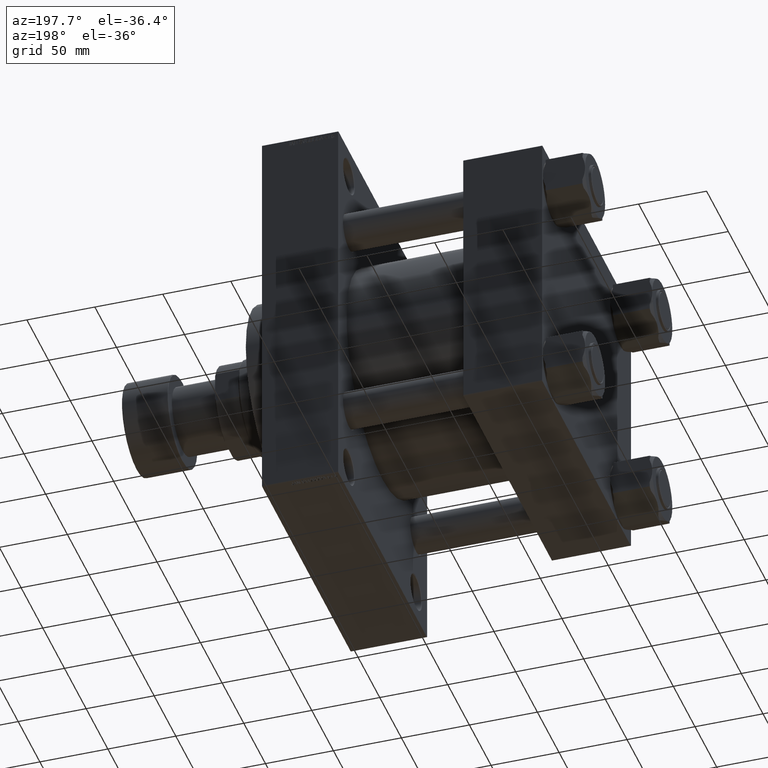
[diagram: clean part render]
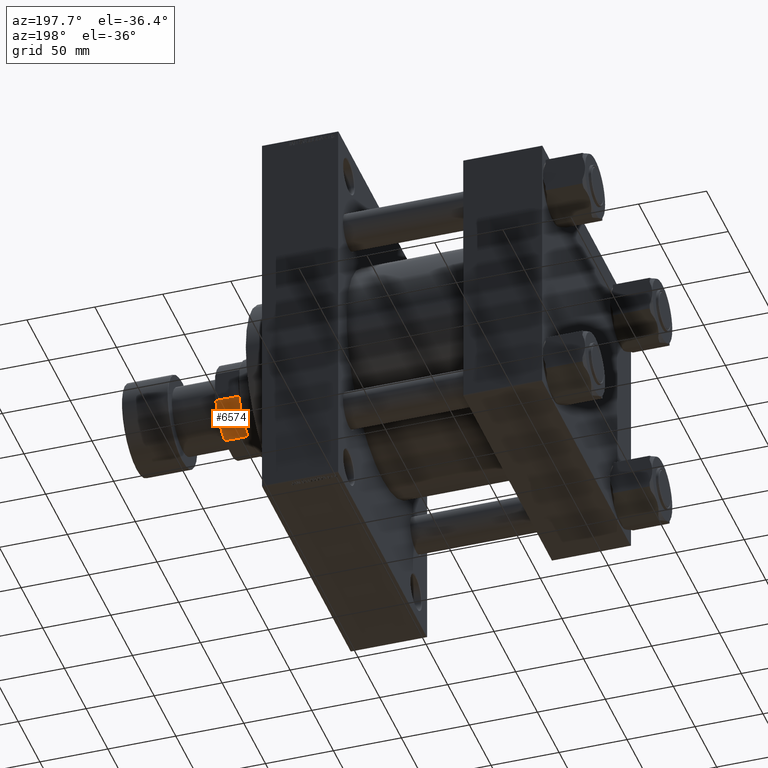
[diagram: same view with one face highlighted and labeled with its STEP entity id]
A machine part, auxiliary view. The second image highlights one B-rep face of the part: STEP entity #6574.
In plain terms, the highlighted cylindrical surface (partial cylindrical patch) has radius 34 mm, axis along (1, 0, 0).
Its self-contained STEP definition (entity closure, byte-faithful):
#779 = EDGE_CURVE ( 'NONE', #19226, #33202, #33602, .T. ) ;
#1121 = ORIENTED_EDGE ( 'NONE', *, *, #5552, .T. ) ;
#1408 = CARTESIAN_POINT ( 'NONE',  ( -32.00000000000000000, 11.48912529307606256, 204.4999999999997442 ) ) ;
#4848 = CARTESIAN_POINT ( 'NONE',  ( -11.48912529307602171, 32.00000000000001421, 187.5000000000000853 ) ) ;
#4854 = EDGE_LOOP ( 'NONE', ( #1121, #17666, #9293, #24168 ) ) ;
#5058 = CYLINDRICAL_SURFACE ( 'NONE', #31719, 34.00000000000000000 ) ;
#5552 = EDGE_CURVE ( 'NONE', #9467, #39588, #15814, .T. ) ;
#6574 = ADVANCED_FACE ( 'NONE', ( #44969 ), #5058, .T. ) ;
#9293 = ORIENTED_EDGE ( 'NONE', *, *, #779, .F. ) ;
#9467 = VERTEX_POINT ( 'NONE', #28546 ) ;
#12595 = DIRECTION ( 'NONE',  ( 1.000000000000000000, 0.000000000000000000, 0.000000000000000000 ) ) ;
#15242 = DIRECTION ( 'NONE',  ( -1.000000000000000000, 0.000000000000000000, 0.000000000000000000 ) ) ;
#15814 = LINE ( 'NONE', #27260, #18458 ) ;
#16245 = CARTESIAN_POINT ( 'NONE',  ( 0.000000000000000000, 0.000000000000000000, -0.001000000000001000089 ) ) ;
#17666 = ORIENTED_EDGE ( 'NONE', *, *, #24781, .T. ) ;
#18458 = VECTOR ( 'NONE', #31150, 1000.000000000000000 ) ;
#19226 = VERTEX_POINT ( 'NONE', #4848 ) ;
#21613 = DIRECTION ( 'NONE',  ( -0.000000000000000000, -0.000000000000000000, 1.000000000000000000 ) ) ;
#24168 = ORIENTED_EDGE ( 'NONE', *, *, #40527, .T. ) ;
#24781 = EDGE_CURVE ( 'NONE', #39588, #33202, #44155, .T. ) ;
#25108 = DIRECTION ( 'NONE',  ( -0.000000000000000000, -0.000000000000000000, 1.000000000000000000 ) ) ;
#25775 = DIRECTION ( 'NONE',  ( -0.000000000000000000, -0.000000000000000000, -1.000000000000000000 ) ) ;
#26482 = DIRECTION ( 'NONE',  ( 1.000000000000000000, 0.000000000000000000, 0.000000000000000000 ) ) ;
#27260 = CARTESIAN_POINT ( 'NONE',  ( -32.00000000000000000, 11.48912529307606256, -0.001000000000001000089 ) ) ;
#27559 = CIRCLE ( 'NONE', #47015, 34.00000000000000000 ) ;
#27837 = AXIS2_PLACEMENT_3D ( 'NONE', #32836, #25775, #26482 ) ;
#28417 = VECTOR ( 'NONE', #25108, 1000.000000000000000 ) ;
#28546 = CARTESIAN_POINT ( 'NONE',  ( -32.00000000000000000, 11.48912529307606079, 187.5000000000000853 ) ) ;
#31150 = DIRECTION ( 'NONE',  ( -0.000000000000000000, -0.000000000000000000, 1.000000000000000000 ) ) ;
#31719 = AXIS2_PLACEMENT_3D ( 'NONE', #16245, #45934, #12595 ) ;
#32836 = CARTESIAN_POINT ( 'NONE',  ( 0.000000000000000000, 0.000000000000000000, 204.4999999999998010 ) ) ;
#33202 = VERTEX_POINT ( 'NONE', #40704 ) ;
#33602 = LINE ( 'NONE', #43590, #28417 ) ;
#39588 = VERTEX_POINT ( 'NONE', #1408 ) ;
#40527 = EDGE_CURVE ( 'NONE', #19226, #9467, #27559, .T. ) ;
#40704 = CARTESIAN_POINT ( 'NONE',  ( -11.48912529307602526, 32.00000000000001421, 204.4999999999997442 ) ) ;
#43590 = CARTESIAN_POINT ( 'NONE',  ( -11.48912529307602526, 32.00000000000001421, -0.001000000000001000089 ) ) ;
#43741 = CARTESIAN_POINT ( 'NONE',  ( 0.000000000000000000, 0.000000000000000000, 187.5000000000000853 ) ) ;
#44155 = CIRCLE ( 'NONE', #27837, 34.00000000000000000 ) ;
#44969 = FACE_OUTER_BOUND ( 'NONE', #4854, .T. ) ;
#45934 = DIRECTION ( 'NONE',  ( -0.000000000000000000, -0.000000000000000000, 1.000000000000000000 ) ) ;
#47015 = AXIS2_PLACEMENT_3D ( 'NONE', #43741, #21613, #15242 ) ;